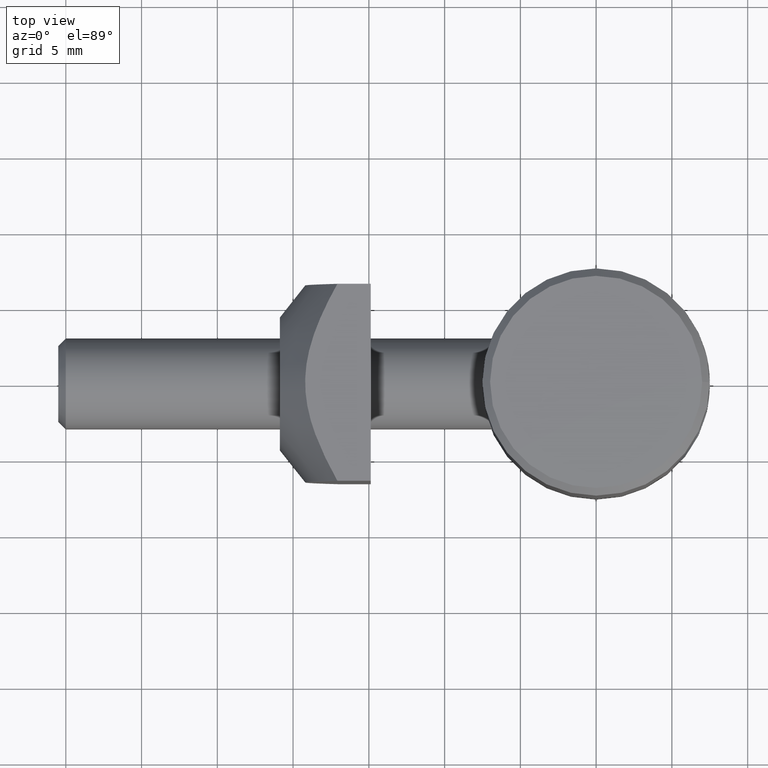
[diagram: clean part render]
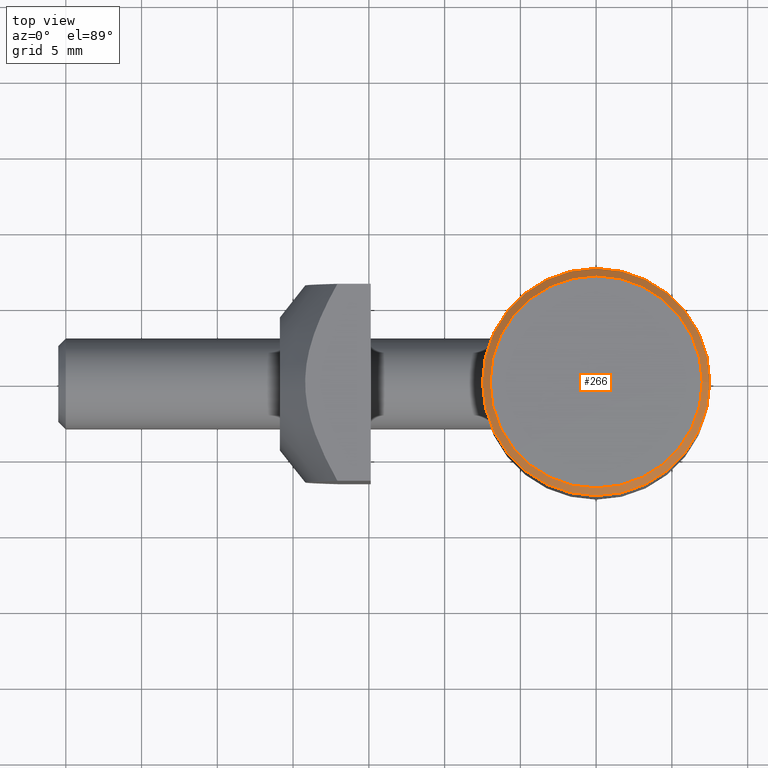
[diagram: same view with one face highlighted and labeled with its STEP entity id]
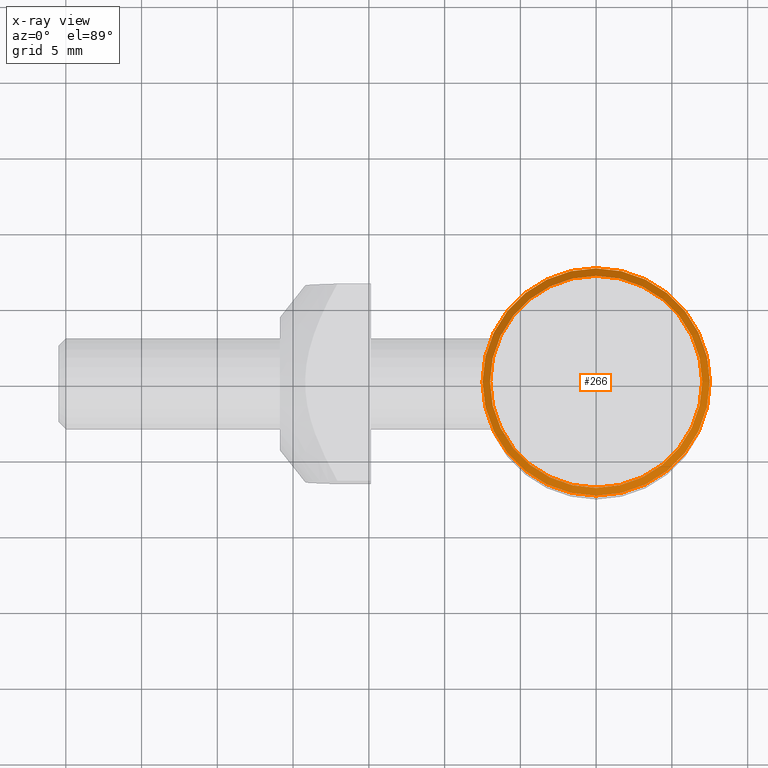
[diagram: x-ray of the same camera — body ghosted, the highlighted face saturated]
A machine part, top view. The second image highlights one B-rep face of the part: STEP entity #266.
The next image is the same camera in x-ray: the body ghosted, the highlighted face saturated — about 0% of this face is hidden behind the body in this view.
In plain terms, the highlighted face is a freeform B-spline surface patch.
Its self-contained STEP definition (entity closure, byte-faithful):
#111=CARTESIAN_POINT('',(7.499999999969987,4.547474E-013,15.499999999938154));
#112=VERTEX_POINT('',#111);
#119=CARTESIAN_POINT('',(-7.499999999969987,4.547474E-013,15.499999999938154));
#120=VERTEX_POINT('',#119);
#121=CARTESIAN_POINT('',(0.0,4.547474E-013,15.499999999938154));
#122=DIRECTION('',(0.0,-6.123234E-017,-1.0));
#123=DIRECTION('',(1.0,0.0,0.0));
#124=AXIS2_PLACEMENT_3D('',#121,#122,#123);
#125=CIRCLE('',#124,7.499999999969987);
#126=EDGE_CURVE('',#112,#120,#125,.T.);
#128=CARTESIAN_POINT('',(0.0,4.547474E-013,15.499999999938154));
#129=DIRECTION('',(0.0,-6.123234E-017,-1.0));
#130=DIRECTION('',(1.0,0.0,0.0));
#131=AXIS2_PLACEMENT_3D('',#128,#129,#130);
#132=CIRCLE('',#131,7.499999999969987);
#133=EDGE_CURVE('',#120,#112,#132,.T.);
#211=CARTESIAN_POINT('',(7.499999999969987,4.547167E-013,15.499999999938154));
#212=CARTESIAN_POINT('',(7.499999999969988,-7.499999999969533,15.499999999938154));
#213=CARTESIAN_POINT('',(-1.667701E-029,-7.499999999969532,15.499999999938154));
#214=CARTESIAN_POINT('',(-7.499999999969988,-7.499999999969533,15.499999999938154));
#215=CARTESIAN_POINT('',(-7.499999999969987,4.547167E-013,15.499999999938154));
#216=CARTESIAN_POINT('',(-7.499999999969988,7.499999999970441,15.499999999938154));
#217=CARTESIAN_POINT('',(1.667701E-029,7.499999999970441,15.499999999938154));
#218=CARTESIAN_POINT('',(7.499999999969988,7.499999999970441,15.499999999938154));
#219=CARTESIAN_POINT('',(7.499999999969987,4.547167E-013,15.499999999938154));
#220=CARTESIAN_POINT('',(6.999999999971806,4.547474E-013,15.999999999936335));
#221=CARTESIAN_POINT('',(6.999999999971806,-6.999999999971351,15.999999999936335));
#222=CARTESIAN_POINT('',(0.0,-6.999999999971351,15.999999999936335));
#223=CARTESIAN_POINT('',(-6.999999999971806,-6.999999999971351,15.999999999936335));
#224=CARTESIAN_POINT('',(-6.999999999971806,4.547474E-013,15.999999999936335));
#225=CARTESIAN_POINT('',(-6.999999999971806,6.999999999972260,15.999999999936335));
#226=CARTESIAN_POINT('',(0.0,6.999999999972260,15.999999999936335));
#227=CARTESIAN_POINT('',(6.999999999971806,6.999999999972260,15.999999999936335));
#228=CARTESIAN_POINT('',(6.999999999971806,4.547474E-013,15.999999999936335));
#236=(BOUNDED_SURFACE()B_SPLINE_SURFACE(2,1,((#211,#220),(#212,#221),(#213,#222),(#214,#223),(#215,#224),(#216,#225),(#217,#226),(#218,#227),(#219,#228)),.UNSPECIFIED.,.T.,.F.,.U.)B_SPLINE_SURFACE_WITH_KNOTS((3,2,2,2,3),(2,2),(0.0,0.250000000000000,0.500000000000000,0.750000000000000,1.0),(-0.707106781183975,0.0),.UNSPECIFIED.)GEOMETRIC_REPRESENTATION_ITEM()RATIONAL_B_SPLINE_SURFACE(((1.0,1.0),(0.707106781186548,0.707106781186548),(1.0,1.0),(0.707106781186548,0.707106781186548),(1.0,1.0),(0.707106781186548,0.707106781186548),(1.0,1.0),(0.707106781186548,0.707106781186548),(1.0,1.0)))REPRESENTATION_ITEM('')SURFACE());
#237=CARTESIAN_POINT('',(6.999999999971806,4.547474E-013,15.999999999936335));
#238=VERTEX_POINT('',#237);
#239=CARTESIAN_POINT('',(7.499999999969987,4.547167E-013,15.499999999938154));
#240=DIRECTION('',(-0.707106781186548,4.329780E-017,0.707106781186548));
#241=VECTOR('',#240,0.707106781183975);
#242=LINE('',#239,#241);
#243=EDGE_CURVE('',#112,#238,#242,.T.);
#244=ORIENTED_EDGE('',*,*,#243,.T.);
#245=CARTESIAN_POINT('',(-6.999999999971806,4.547474E-013,15.999999999936335));
#246=VERTEX_POINT('',#245);
#247=CARTESIAN_POINT('',(0.0,4.547474E-013,15.999999999936335));
#248=DIRECTION('',(0.0,-6.123234E-017,-1.0));
#249=DIRECTION('',(1.0,0.0,0.0));
#250=AXIS2_PLACEMENT_3D('',#247,#248,#249);
#251=CIRCLE('',#250,6.999999999971806);
#252=EDGE_CURVE('',#238,#246,#251,.T.);
#253=ORIENTED_EDGE('',*,*,#252,.T.);
#254=CARTESIAN_POINT('',(0.0,4.547474E-013,15.999999999936335));
#255=DIRECTION('',(0.0,-6.123234E-017,-1.0));
#256=DIRECTION('',(1.0,0.0,0.0));
#257=AXIS2_PLACEMENT_3D('',#254,#255,#256);
#258=CIRCLE('',#257,6.999999999971806);
#259=EDGE_CURVE('',#246,#238,#258,.T.);
#260=ORIENTED_EDGE('',*,*,#259,.T.);
#261=ORIENTED_EDGE('',*,*,#243,.F.);
#262=ORIENTED_EDGE('',*,*,#133,.F.);
#263=ORIENTED_EDGE('',*,*,#126,.F.);
#264=EDGE_LOOP('',(#244,#253,#260,#261,#262,#263));
#265=FACE_OUTER_BOUND('',#264,.T.);
#266=ADVANCED_FACE('',(#265),#236,.F.);